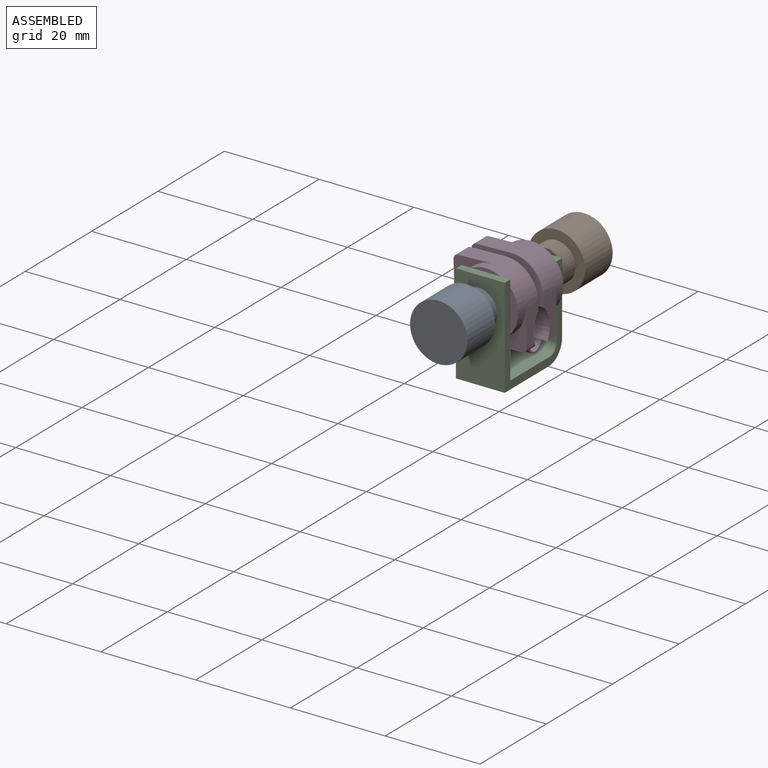
[diagram: assembled view]
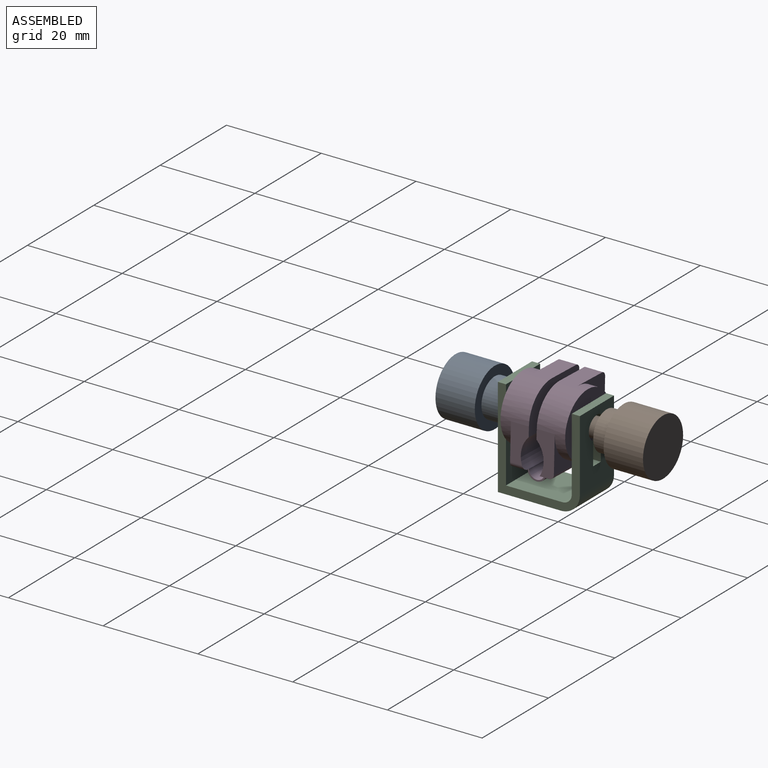
[diagram: assembled view, second angle]
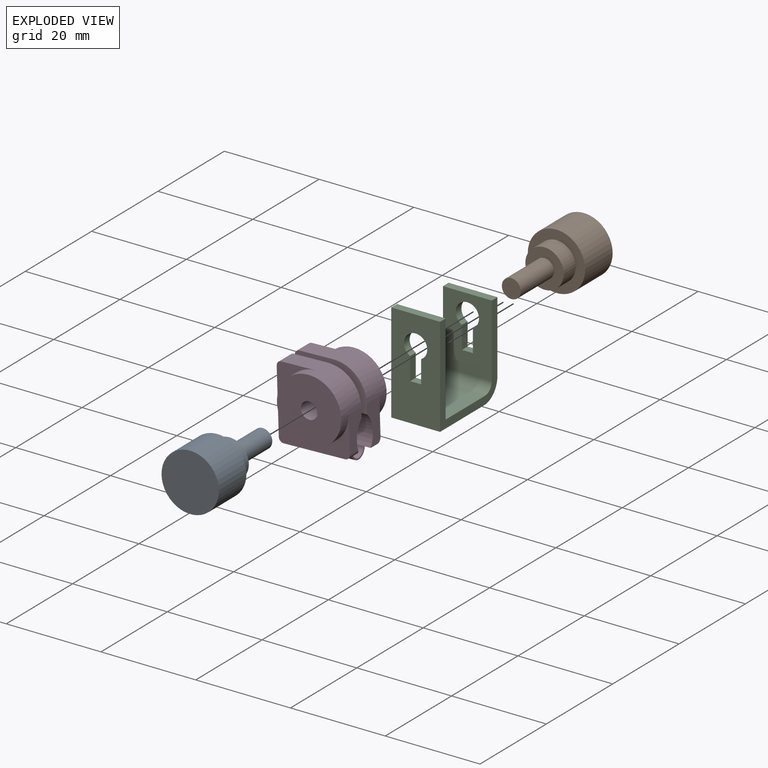
[diagram: exploded view]
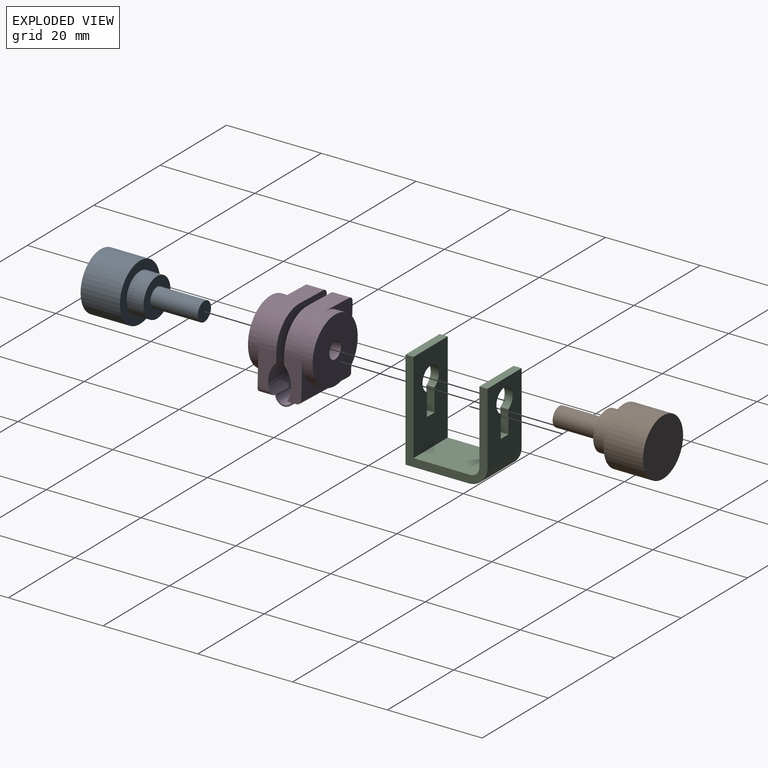
[diagram: exploded view, second angle]
ASSEMBLY  parts=4 mates=3
PART A: 7 faces, bbox 21.9x12.1x12.1 mm
  f0: cylinder r=6.05mm len=12.1mm, axis (1,0,0), area 315.5mm2, adj f1,f2
  f1: plane 12.1x12.1mm, normal (-1,0,0), area 115mm2, adj f0
  f2: plane 12.1x12.1mm, normal (1,0,0), area 63.5mm2, adj f0,f3
  f3: cylinder r=4.05mm len=8.1mm, axis (-1,0,0), area 91.6mm2, adj f2,f4
  f4: plane 8.1x8.1mm, normal (1,0,0), area 39mm2, adj f3,f5
  f5: cylinder r=2mm len=10mm, axis (-1,0,0), area 125.7mm2, adj f4,f6
  f6: plane 4x4mm, normal (1,0,0), area 12.6mm2, adj f5
PART B: 7 faces, bbox 21.9x12.1x12.1 mm
  f0: cylinder r=6.05mm len=12.1mm, axis (-1,0,0), area 315.5mm2, adj f1,f2
  f1: plane 12.1x12.1mm, normal (1,0,0), area 115mm2, adj f0
  f2: plane 12.1x12.1mm, normal (-1,0,0), area 63.5mm2, adj f0,f3
  f3: cylinder r=4.05mm len=8.1mm, axis (1,0,0), area 91.6mm2, adj f2,f4
  f4: plane 8.1x8.1mm, normal (-1,0,0), area 39mm2, adj f3,f5
  f5: cylinder r=2mm len=10mm, axis (1,0,0), area 125.7mm2, adj f4,f6
  f6: plane 4x4mm, normal (-1,0,0), area 12.6mm2, adj f5
PART C: 20 faces, bbox 10.3x17.3x21 mm
  f0: plane 15.1x10.3mm, normal (0,1,0), area 126.1mm2, adj f1,f9,f10,f11,f16,f17,f18,f19
  f1: plane 10.3x1.7mm, normal (0,0,1), area 17.5mm2, adj f0,f2,f10,f11
  f2: plane 15.4x10.3mm, normal (0,-1,0), area 129.2mm2, adj f1,f3,f10,f11,f16,f17,f18,f19
  f3: cylinder r=2mm len=10.3mm, axis (-1,0,0), area 32.4mm2, adj f2,f4,f10,f11
  f4: plane 11.9x10.3mm, normal (0,0,1), area 122.6mm2, adj f3,f5,f10,f11
  f5: plane 19.3x10.3mm, normal (0,1,0), area 169.4mm2, adj f4,f6,f10,f11,f12,f13,f14,f15
  f6: plane 10.3x1.7mm, normal (0,0,1), area 17.5mm2, adj f5,f7,f10,f11
  f7: plane 21x10.3mm, normal (0,-1,0), area 186.9mm2, adj f6,f8,f10,f11,f12,f13,f14,f15
  f8: plane 13.3x10.3mm, normal (0,0,-1), area 137mm2, adj f7,f9,f10,f11
  f9: cylinder r=4mm len=10.3mm, axis (-1,0,0), area 64.7mm2, adj f0,f8,f10,f11
  f10: plane 21x17.3mm, normal (1,0,0), area 89.2mm2, adj f0,f1,f2,f3,f4,f5,f6,f7
  f11: plane 21x17.3mm, normal (-1,0,0), area 89.2mm2, adj f0,f1,f2,f3,f4,f5,f6,f7
  f12: plane 4.79x1.7mm, normal (-1,0,0), area 8.1mm2, adj f5,f7,f13,f15
  f13: plane 2.3x1.7mm, normal (0,0,1), area 3.9mm2, adj f5,f7,f12,f14
  f14: plane 4.79x1.7mm, normal (1,0,0), area 8.1mm2, adj f5,f7,f13,f15
  f15: cylinder r=2.45mm len=4.9mm, axis (0,-1,0), area 22.1mm2, adj f5,f7,f12,f14
  f16: cylinder r=2.45mm len=4.9mm, axis (0,-1,0), area 22.1mm2, adj f0,f2,f17,f19
  f17: plane 4.79x1.7mm, normal (1,0,0), area 8.1mm2, adj f0,f2,f16,f18
  f18: plane 2.3x1.7mm, normal (0,0,1), area 3.9mm2, adj f0,f2,f17,f19
  f19: plane 4.79x1.7mm, normal (-1,0,0), area 8.1mm2, adj f0,f2,f16,f18
PART D: 31 faces, bbox 15x13.7x17.4 mm
  f0: cylinder r=1mm len=0.11mm, axis (0,-1,0), area 0mm2, adj f10,f22
  f1: plane 13x2.97mm, normal (0,0,-1), area 34.9mm2, adj f5,f10,f21,f24,f29,f30
  f2: cylinder r=1.75mm len=6mm, axis (0,1,0), area 66mm2, adj f4,f9
  f3: cylinder r=6.8mm len=13.6mm, axis (0,1,0), area 134.6mm2, adj f4,f5,f6,f7,f9
  f4: plane 13.6x13.6mm, normal (0,-1,0), area 135.6mm2, adj f2,f3
  f5: plane 15.5x15mm, normal (0,-1,0), area 76.7mm2, adj f1,f3,f6,f7,f8,f28,f29,f30
  f6: plane 7.7x3.8mm, normal (1,0,0), area 22.4mm2, adj f3,f5,f9,f10,f30
  f7: plane 7.2x3.8mm, normal (0,0,1), area 27.4mm2, adj f3,f5,f9,f28
  f8: plane 13.5x3.8mm, normal (-1,0,0), area 44.4mm2, adj f5,f9,f10,f28,f29
  f9: plane 15x8.84mm, normal (0,1,0), area 112.9mm2, adj f2,f3,f6,f7,f8,f10,f28
  f10: cylinder r=5.5mm len=15mm, axis (1,0,0), area 107.6mm2, adj f0,f1,f6,f8,f9,f22,f23,f29
  f11: cylinder r=1.75mm len=6mm, axis (0,-1,0), area 66mm2, adj f13,f19
  f12: cylinder r=6.8mm len=13.6mm, axis (0,-1,0), area 134.6mm2, adj f13,f14,f15,f16,f19
  f13: plane 13.6x13.6mm, normal (0,1,0), area 135.6mm2, adj f11,f12
  f14: plane 15x14.5mm, normal (0,1,0), area 62.1mm2, adj f12,f15,f16,f17,f25,f26
  f15: plane 8.7x3.8mm, normal (1,0,0), area 24.9mm2, adj f12,f14,f18,f19,f20,f26
  f16: plane 7.2x3.8mm, normal (0,0,1), area 27.4mm2, adj f12,f14,f19,f25
  f17: plane 13.5x3.8mm, normal (-1,0,0), area 44.4mm2, adj f14,f19,f20,f25,f27
  f18: plane 14x1.97mm, normal (0,0,-1), area 23.9mm2, adj f15,f20,f21,f22,f24,f26,f27
  f19: plane 15x8.84mm, normal (0,-1,0), area 112.9mm2, adj f11,f12,f15,f16,f17,f20,f25
  f20: cylinder r=5.5mm len=15mm, axis (1,0,0), area 107.7mm2, adj f15,f17,f18,f19,f27
  f21: cylinder r=1.96mm len=12.7mm, axis (1,0,0), area 77.3mm2, adj f1,f18,f23,f24,f27,f29
  f22: cylinder r=1.67mm len=12.7mm, axis (1,0,0), area 65.5mm2, adj f0,f10,f18,f23,f24,f27
  f23: plane 3.93x1.94mm, normal (-1,0,0), area 1.7mm2, adj f10,f21,f22,f27,f29
  f24: plane 3.93x1.92mm, normal (1,0,0), area 1.7mm2, adj f1,f18,f21,f22
  f25: cylinder r=1mm len=3.8mm, axis (0,1,0), area 6mm2, adj f14,f16,f17,f19
  f26: cylinder r=1mm len=15mm, axis (1,0,0), area 22.8mm2, adj f14,f15,f18,f27
  f27: cylinder r=1mm len=2.97mm, axis (0,1,0), area 3.7mm2, adj f17,f18,f20,f21,f22,f23,f26
  f28: cylinder r=1mm len=3.8mm, axis (0,-1,0), area 6mm2, adj f5,f7,f8,f9
  f29: cylinder r=1mm len=2.96mm, axis (0,-1,0), area 4.3mm2, adj f1,f5,f8,f10,f21,f23
  f30: cylinder r=1mm len=2.97mm, axis (0,-1,0), area 4.3mm2, adj f1,f5,f6,f10
PLACE A rot(axis=(-0.12,-0.12,0.99),90.9deg) t=(-79.62,28.62,-8.8)mm
PLACE B rot(axis=(-0.12,-0.12,0.99),90.9deg) t=(-79.62,28.42,-8.8)mm
PLACE C t=(-32.93,7.17,-6.85)mm fixed
PLACE D rot(axis=(0,-1,0),1.9deg) t=(-27.78,9.37,34.92)mm
MATE revolute D.f3 <-> C.f15  axis (0,-1,0) through (-27.78,7.17,34.92)mm
MATE fastened A.f0 <-> B.f0  axis (0,1,0) through (-27.78,14.82,34.92)mm
MATE revolute B.f0 <-> D.f2  axis (0,-1,0) through (-27.78,14.82,34.92)mm
